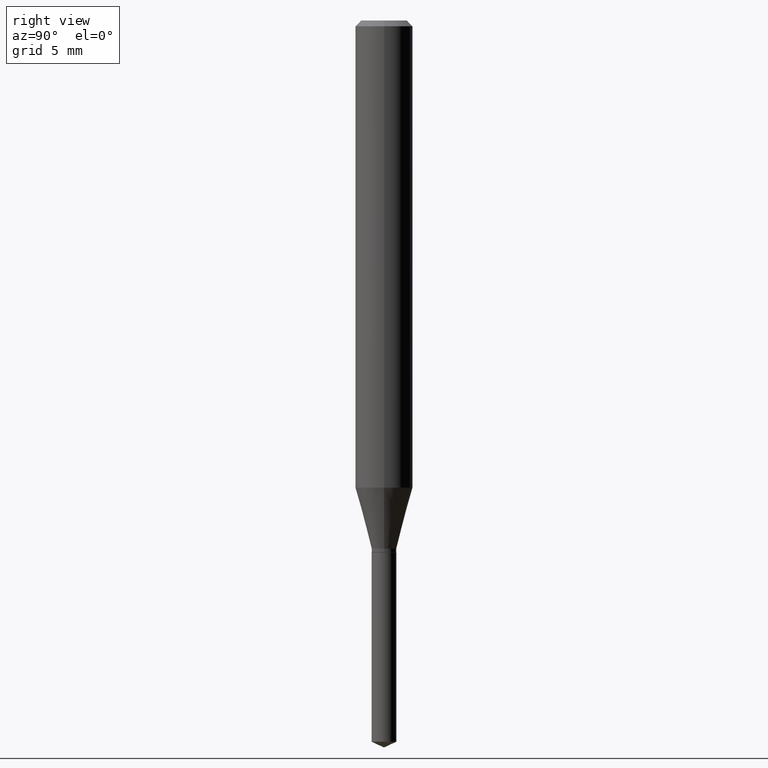
[diagram: clean part render]
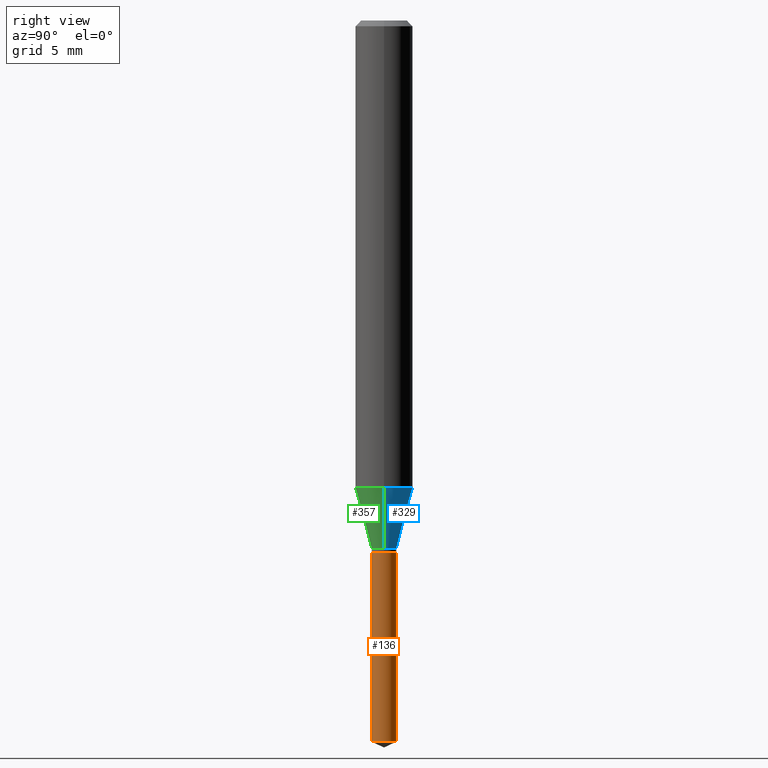
[diagram: same view with three faces highlighted in distinct colors, each labeled with its STEP entity id]
A machine part, right view with three faces highlighted in distinct colors.
Their STEP definitions:

[orange] entity #136 — the highlighted cylindrical surface (edge-blend (fillet) strip) has radius 0.6452 mm, axis along (-0, 0, 1).
#2 = EDGE_CURVE ( 'NONE', #43, #443, #195, .T. ) ;
#43 = VERTEX_POINT ( 'NONE', #149 ) ;
#51 = VECTOR ( 'NONE', #247, 39.37007874015748143 ) ;
#68 = LINE ( 'NONE', #224, #51 ) ;
#74 = AXIS2_PLACEMENT_3D ( 'NONE', #228, #489, #152 ) ;
#91 = EDGE_CURVE ( 'NONE', #368, #443, #213, .T. ) ;
#99 = CARTESIAN_POINT ( 'NONE',  ( -1.773672520132044001E-16, -0.02540000000000381883, -1.094499999999999806 ) ) ;
#100 = EDGE_CURVE ( 'NONE', #398, #43, #107, .T. ) ;
#107 = CIRCLE ( 'NONE', #486, 0.02539999999999999897 ) ;
#116 = DIRECTION ( 'NONE',  ( -2.445470214571802396E-29, 3.491479321953280158E-15, 1.000000000000000000 ) ) ;
#136 = ADVANCED_FACE ( 'NONE', ( #391 ), #262, .T. ) ;
#149 = CARTESIAN_POINT ( 'NONE',  ( 1.804778548831017275E-16, 0.02539999999999480867, -1.484255785482863077 ) ) ;
#152 = DIRECTION ( 'NONE',  ( -6.982962677686265922E-15, -1.000000000000000000, 5.377653530835164164E-15 ) ) ;
#170 = EDGE_CURVE ( 'NONE', #398, #368, #68, .T. ) ;
#193 = CARTESIAN_POINT ( 'NONE',  ( 2.676565608369631794E-29, -3.821426325363822773E-15, -1.094499999999999806 ) ) ;
#195 = LINE ( 'NONE', #384, #248 ) ;
#196 = ORIENTED_EDGE ( 'NONE', *, *, #2, .T. ) ;
#213 = CIRCLE ( 'NONE', #74, 0.02539999999999999897 ) ;
#220 = ORIENTED_EDGE ( 'NONE', *, *, #170, .F. ) ;
#224 = CARTESIAN_POINT ( 'NONE',  ( -1.773672520132044001E-16, -0.02540000000000381883, -1.094499999999999806 ) ) ;
#228 = CARTESIAN_POINT ( 'NONE',  ( 2.676565608369631794E-29, -3.821426325363822773E-15, -1.094499999999999806 ) ) ;
#247 = DIRECTION ( 'NONE',  ( -2.445470214571802396E-29, 3.491479321953280158E-15, 1.000000000000000000 ) ) ;
#248 = VECTOR ( 'NONE', #116, 39.37007874015748143 ) ;
#259 = ORIENTED_EDGE ( 'NONE', *, *, #91, .F. ) ;
#262 = CYLINDRICAL_SURFACE ( 'NONE', #274, 0.02539999999999999897 ) ;
#271 = DIRECTION ( 'NONE',  ( -2.445470214571802116E-29, 3.491479321953280158E-15, 1.000000000000000000 ) ) ;
#274 = AXIS2_PLACEMENT_3D ( 'NONE', #193, #271, #458 ) ;
#368 = VERTEX_POINT ( 'NONE', #99 ) ;
#384 = CARTESIAN_POINT ( 'NONE',  ( 1.804778548830921625E-16, 0.02539999999999617911, -1.094500000000000028 ) ) ;
#388 = CARTESIAN_POINT ( 'NONE',  ( 3.629701772725010767E-29, -5.182250590988897137E-15, -1.484255785482863077 ) ) ;
#391 = FACE_OUTER_BOUND ( 'NONE', #477, .T. ) ;
#398 = VERTEX_POINT ( 'NONE', #471 ) ;
#407 = ORIENTED_EDGE ( 'NONE', *, *, #100, .T. ) ;
#420 = DIRECTION ( 'NONE',  ( -2.445470214571802116E-29, 3.491479321953280158E-15, 1.000000000000000000 ) ) ;
#443 = VERTEX_POINT ( 'NONE', #476 ) ;
#456 = DIRECTION ( 'NONE',  ( -6.982962677686265922E-15, -1.000000000000000000, 0.000000000000000000 ) ) ;
#458 = DIRECTION ( 'NONE',  ( -6.982962677686265922E-15, -1.000000000000000000, 5.377653530835164164E-15 ) ) ;
#471 = CARTESIAN_POINT ( 'NONE',  ( -1.773672520131948105E-16, -0.02540000000000517885, -1.484255785482863077 ) ) ;
#476 = CARTESIAN_POINT ( 'NONE',  ( 1.804778548831018014E-16, 0.02539999999999617911, -1.094500000000000028 ) ) ;
#477 = EDGE_LOOP ( 'NONE', ( #407, #196, #259, #220 ) ) ;
#486 = AXIS2_PLACEMENT_3D ( 'NONE', #388, #420, #456 ) ;
#489 = DIRECTION ( 'NONE',  ( -2.445470214571802116E-29, 3.491479321953280158E-15, 1.000000000000000000 ) ) ;

[blue] entity #329 — the highlighted conical surface has half-angle 15 deg.
#6 = CARTESIAN_POINT ( 'NONE',  ( -0.02539999999999999897, -3.614413212305549049E-15, -1.086899999999999755 ) ) ;
#9 = CARTESIAN_POINT ( 'NONE',  ( 2.657980045442624351E-29, -3.794891067188614341E-15, -1.086899999999999755 ) ) ;
#10 = ORIENTED_EDGE ( 'NONE', *, *, #260, .T. ) ;
#19 = VERTEX_POINT ( 'NONE', #344 ) ;
#25 = EDGE_CURVE ( 'NONE', #19, #350, #82, .T. ) ;
#49 = ORIENTED_EDGE ( 'NONE', *, *, #25, .F. ) ;
#50 = DIRECTION ( 'NONE',  ( 0.2588190451025213501, 1.565188264969621968E-15, 0.9659258262890682012 ) ) ;
#65 = ORIENTED_EDGE ( 'NONE', *, *, #218, .F. ) ;
#81 = FACE_OUTER_BOUND ( 'NONE', #468, .T. ) ;
#82 = CIRCLE ( 'NONE', #92, 0.05905000000000011628 ) ;
#85 = DIRECTION ( 'NONE',  ( 1.000000000000000000, -6.982962677686267499E-15, 0.000000000000000000 ) ) ;
#87 = ORIENTED_EDGE ( 'NONE', *, *, #335, .T. ) ;
#92 = AXIS2_PLACEMENT_3D ( 'NONE', #342, #349, #453 ) ;
#98 = CONICAL_SURFACE ( 'NONE', #255, 0.02539999999999999897, 0.2617993877991500740 ) ;
#123 = CARTESIAN_POINT ( 'NONE',  ( 0.02539999999999999897, -3.972258319201845415E-15, -1.086899999999999755 ) ) ;
#160 = DIRECTION ( 'NONE',  ( -0.2588190451025213501, 5.211531920934551042E-15, 0.9659258262890682012 ) ) ;
#164 = DIRECTION ( 'NONE',  ( -2.445468806185136597E-29, 3.491481338843145583E-15, 1.000000000000000000 ) ) ;
#176 = VERTEX_POINT ( 'NONE', #467 ) ;
#180 = VECTOR ( 'NONE', #50, 39.37007874015747433 ) ;
#218 = EDGE_CURVE ( 'NONE', #338, #19, #464, .T. ) ;
#222 = AXIS2_PLACEMENT_3D ( 'NONE', #9, #164, #331 ) ;
#239 = CARTESIAN_POINT ( 'NONE',  ( 2.657980045442624351E-29, -3.794891067188614341E-15, -1.086899999999999755 ) ) ;
#242 = DIRECTION ( 'NONE',  ( -2.445468806185136597E-29, 3.491481338843145583E-15, 1.000000000000000000 ) ) ;
#251 = CARTESIAN_POINT ( 'NONE',  ( -0.05905000000000011628, -2.936843101226656270E-15, -0.9613164903253069715 ) ) ;
#255 = AXIS2_PLACEMENT_3D ( 'NONE', #239, #242, #85 ) ;
#260 = EDGE_CURVE ( 'NONE', #176, #350, #285, .T. ) ;
#281 = VECTOR ( 'NONE', #160, 39.37007874015747433 ) ;
#285 = LINE ( 'NONE', #6, #281 ) ;
#295 = CARTESIAN_POINT ( 'NONE',  ( 0.02539999999999999897, -3.972258319201845415E-15, -1.086899999999999755 ) ) ;
#329 = ADVANCED_FACE ( 'NONE', ( #81 ), #98, .T. ) ;
#331 = DIRECTION ( 'NONE',  ( 1.000000000000000000, -6.982962677686267499E-15, 0.000000000000000000 ) ) ;
#335 = EDGE_CURVE ( 'NONE', #338, #176, #437, .T. ) ;
#338 = VERTEX_POINT ( 'NONE', #295 ) ;
#342 = CARTESIAN_POINT ( 'NONE',  ( 2.350869489961913671E-29, -3.356418586692996552E-15, -0.9613164903253069715 ) ) ;
#344 = CARTESIAN_POINT ( 'NONE',  ( 0.05905000000000011628, -3.768762532810371078E-15, -0.9613164903253069715 ) ) ;
#349 = DIRECTION ( 'NONE',  ( -2.445468806185136597E-29, 3.491481338843145583E-15, 1.000000000000000000 ) ) ;
#350 = VERTEX_POINT ( 'NONE', #251 ) ;
#437 = CIRCLE ( 'NONE', #222, 0.02539999999999999897 ) ;
#453 = DIRECTION ( 'NONE',  ( 1.000000000000000000, -6.982962677686266711E-15, 0.000000000000000000 ) ) ;
#464 = LINE ( 'NONE', #123, #180 ) ;
#467 = CARTESIAN_POINT ( 'NONE',  ( -0.02539999999999999897, -3.626807971058442119E-15, -1.086899999999999755 ) ) ;
#468 = EDGE_LOOP ( 'NONE', ( #87, #10, #49, #65 ) ) ;

[green] entity #357 — the highlighted conical surface has half-angle 15 deg.
#5 = CONICAL_SURFACE ( 'NONE', #460, 0.02539999999999999897, 0.2617993877991500740 ) ;
#6 = CARTESIAN_POINT ( 'NONE',  ( -0.02539999999999999897, -3.614413212305549049E-15, -1.086899999999999755 ) ) ;
#19 = VERTEX_POINT ( 'NONE', #344 ) ;
#50 = DIRECTION ( 'NONE',  ( 0.2588190451025213501, 1.565188264969621968E-15, 0.9659258262890682012 ) ) ;
#59 = CARTESIAN_POINT ( 'NONE',  ( 2.350869489961913671E-29, -3.356418586692996552E-15, -0.9613164903253069715 ) ) ;
#60 = ORIENTED_EDGE ( 'NONE', *, *, #380, .T. ) ;
#93 = AXIS2_PLACEMENT_3D ( 'NONE', #59, #405, #293 ) ;
#119 = CIRCLE ( 'NONE', #93, 0.05905000000000011628 ) ;
#123 = CARTESIAN_POINT ( 'NONE',  ( 0.02539999999999999897, -3.972258319201845415E-15, -1.086899999999999755 ) ) ;
#130 = CARTESIAN_POINT ( 'NONE',  ( 2.657980045442624351E-29, -3.794891067188614341E-15, -1.086899999999999755 ) ) ;
#160 = DIRECTION ( 'NONE',  ( -0.2588190451025213501, 5.211531920934551042E-15, 0.9659258262890682012 ) ) ;
#176 = VERTEX_POINT ( 'NONE', #467 ) ;
#178 = CARTESIAN_POINT ( 'NONE',  ( 2.657980045442624351E-29, -3.794891067188614341E-15, -1.086899999999999755 ) ) ;
#180 = VECTOR ( 'NONE', #50, 39.37007874015747433 ) ;
#215 = ORIENTED_EDGE ( 'NONE', *, *, #363, .F. ) ;
#218 = EDGE_CURVE ( 'NONE', #338, #19, #464, .T. ) ;
#251 = CARTESIAN_POINT ( 'NONE',  ( -0.05905000000000011628, -2.936843101226656270E-15, -0.9613164903253069715 ) ) ;
#256 = DIRECTION ( 'NONE',  ( 1.000000000000000000, -6.982962677686267499E-15, 0.000000000000000000 ) ) ;
#260 = EDGE_CURVE ( 'NONE', #176, #350, #285, .T. ) ;
#281 = VECTOR ( 'NONE', #160, 39.37007874015747433 ) ;
#285 = LINE ( 'NONE', #6, #281 ) ;
#286 = DIRECTION ( 'NONE',  ( -2.445468806185136597E-29, 3.491481338843145583E-15, 1.000000000000000000 ) ) ;
#293 = DIRECTION ( 'NONE',  ( 1.000000000000000000, -6.982962677686266711E-15, 0.000000000000000000 ) ) ;
#295 = CARTESIAN_POINT ( 'NONE',  ( 0.02539999999999999897, -3.972258319201845415E-15, -1.086899999999999755 ) ) ;
#300 = EDGE_LOOP ( 'NONE', ( #412, #60, #325, #215 ) ) ;
#325 = ORIENTED_EDGE ( 'NONE', *, *, #218, .T. ) ;
#328 = FACE_OUTER_BOUND ( 'NONE', #300, .T. ) ;
#333 = DIRECTION ( 'NONE',  ( -2.445468806185136597E-29, 3.491481338843145583E-15, 1.000000000000000000 ) ) ;
#338 = VERTEX_POINT ( 'NONE', #295 ) ;
#344 = CARTESIAN_POINT ( 'NONE',  ( 0.05905000000000011628, -3.768762532810371078E-15, -0.9613164903253069715 ) ) ;
#350 = VERTEX_POINT ( 'NONE', #251 ) ;
#357 = ADVANCED_FACE ( 'NONE', ( #328 ), #5, .T. ) ;
#363 = EDGE_CURVE ( 'NONE', #350, #19, #119, .T. ) ;
#378 = CIRCLE ( 'NONE', #473, 0.02539999999999999897 ) ;
#380 = EDGE_CURVE ( 'NONE', #176, #338, #378, .T. ) ;
#405 = DIRECTION ( 'NONE',  ( -2.445468806185136597E-29, 3.491481338843145583E-15, 1.000000000000000000 ) ) ;
#409 = DIRECTION ( 'NONE',  ( 1.000000000000000000, -6.982962677686267499E-15, 0.000000000000000000 ) ) ;
#412 = ORIENTED_EDGE ( 'NONE', *, *, #260, .F. ) ;
#460 = AXIS2_PLACEMENT_3D ( 'NONE', #130, #286, #409 ) ;
#464 = LINE ( 'NONE', #123, #180 ) ;
#467 = CARTESIAN_POINT ( 'NONE',  ( -0.02539999999999999897, -3.626807971058442119E-15, -1.086899999999999755 ) ) ;
#473 = AXIS2_PLACEMENT_3D ( 'NONE', #178, #333, #256 ) ;